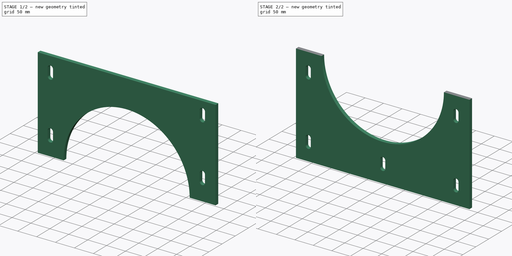
[diagram: build sequence overview — one tinted view per stage of 2, left to right]
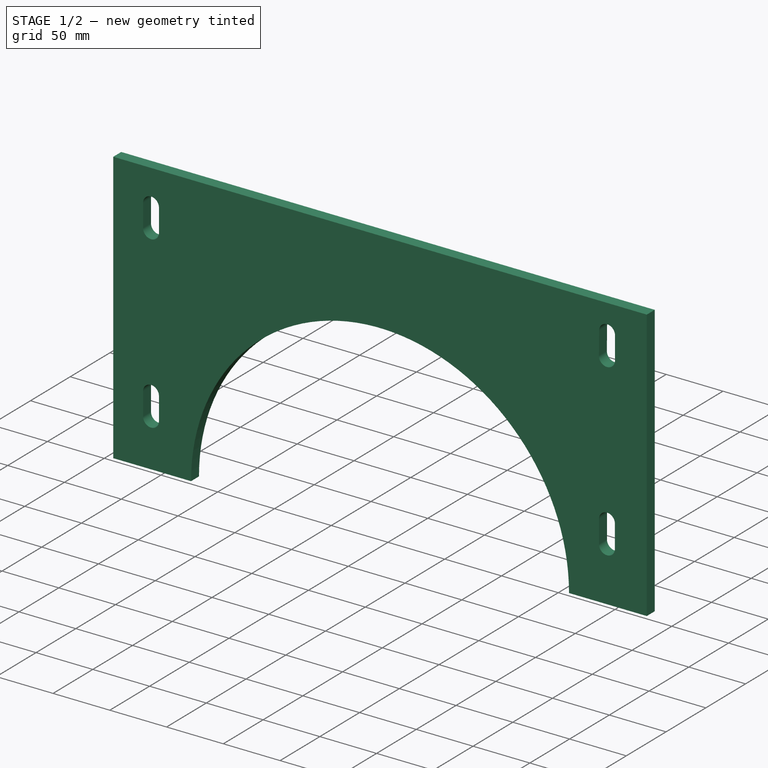
[diagram: stage 1 of 2 — iso view after this stage's code; geometry added in this stage tinted green]
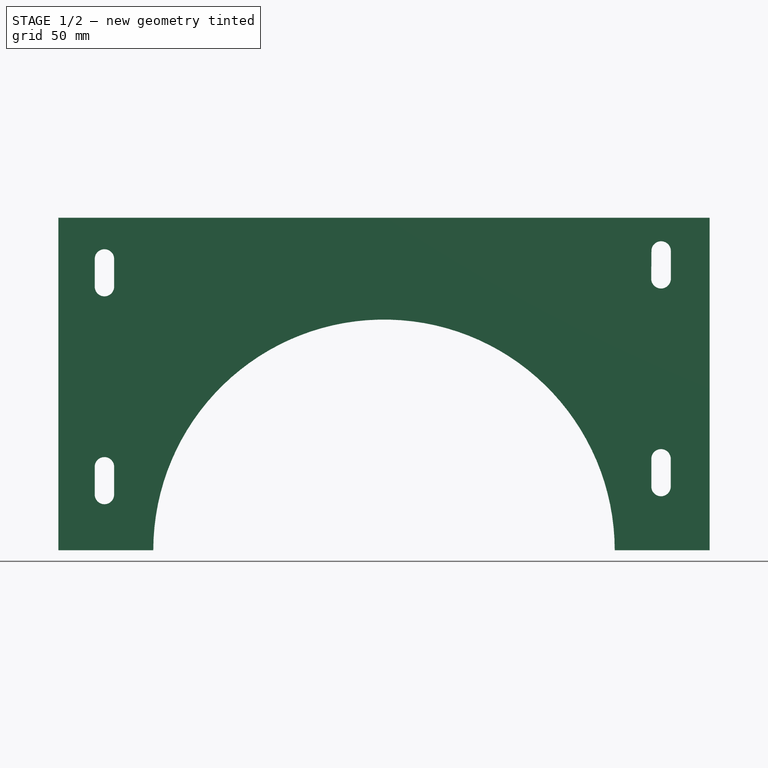
[diagram: stage 1 of 2 — front view after this stage's code; geometry added in this stage tinted green]
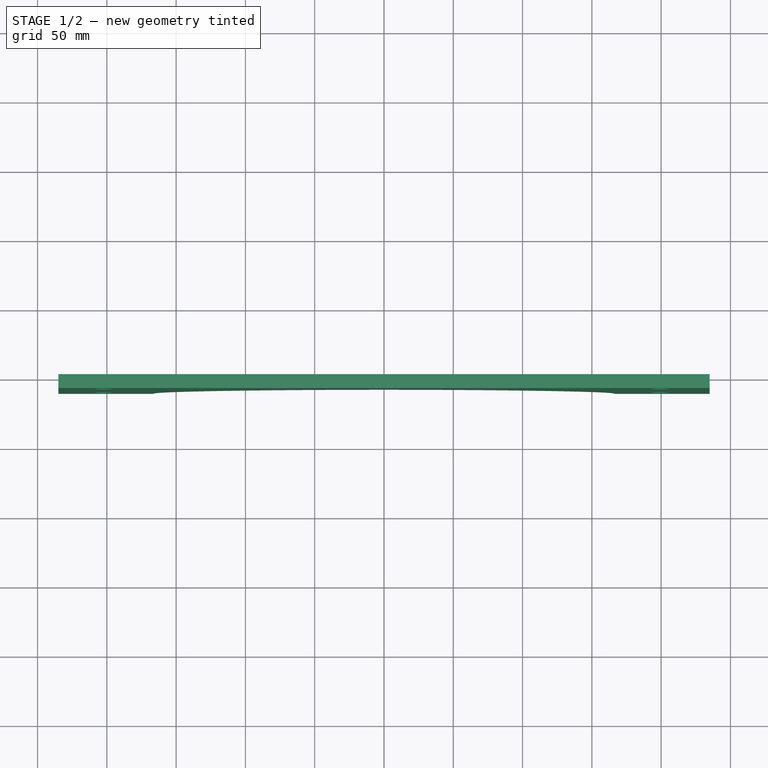
[diagram: stage 1 of 2 — top view after this stage's code; geometry added in this stage tinted green]
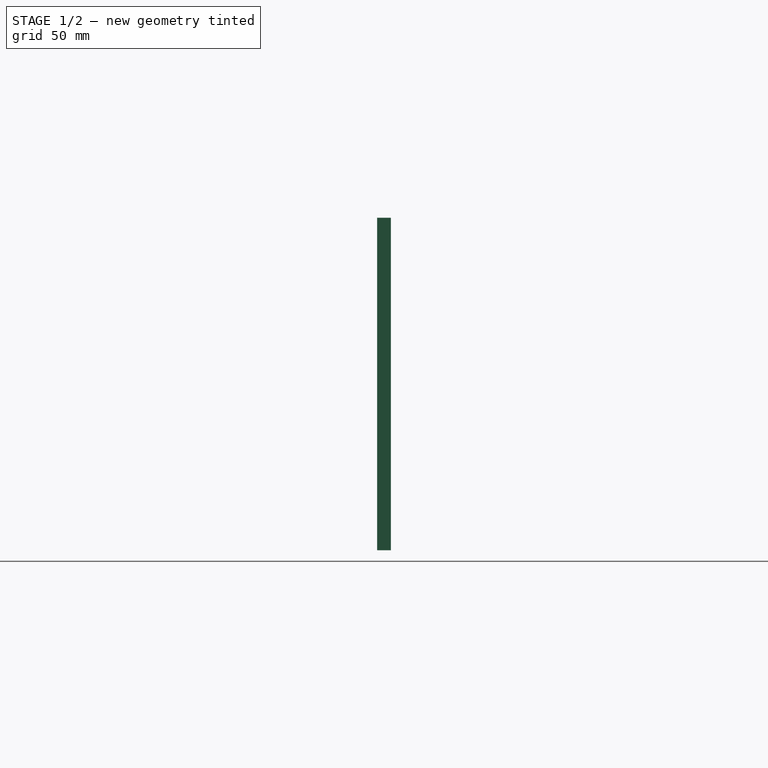
[diagram: stage 1 of 2 — right view after this stage's code; geometry added in this stage tinted green]
FCSTD DOCUMENT  (FreeCAD 0.21R33771 (Git))
Label: pipeBrg
License: All rights reserved
objects: Sketcher::SketchObject×2, Part::Extrusion×2, App::Part×1
note: 4 computed .brp shape members not serialized (recipe doc carries the construction recipe); baked Part::Feature solids carry a one-line shape summary decoded from their .brp

FEATURE [Sketcher::SketchObject] Sketch
  FullyConstrained = false
  Placement = pos=(0,0,0) rot=(1,0,0;1.5708rad)
  sketch-geometry (23):
    g0: LineSegment StartX=-235 StartY=2.04e-14 StartZ=0 EndX=-166.5 EndY=2.04e-14 EndZ=0
    g1: LineSegment StartX=235 StartY=0 StartZ=0 EndX=235 EndY=240 EndZ=0
    g2: LineSegment StartX=235 StartY=240 StartZ=0 EndX=-235 EndY=240 EndZ=0
    g3: LineSegment StartX=-235 StartY=240 StartZ=0 EndX=-235 EndY=2.84e-14 EndZ=0
    g4: ArcOfCircle CenterX=0 CenterY=0 CenterZ=0 NormalX=0 NormalY=0 NormalZ=1 AngleXU=0 Radius=166.5 StartAngle=0 EndAngle=3.14159
    g5: ArcOfCircle CenterX=200 CenterY=216 CenterZ=0 NormalX=0 NormalY=0 NormalZ=1 AngleXU=0 Radius=7.00012 StartAngle=0.000374706 EndAngle=3.13323
    g6: ArcOfCircle CenterX=199.917 CenterY=196.001 CenterZ=0 NormalX=0 NormalY=0 NormalZ=1 AngleXU=0 Radius=7.09043 StartAngle=3.13344 EndAngle=6.28314
    g7: LineSegment StartX=193 StartY=216.059 StartZ=0 EndX=192.827 EndY=196.059 EndZ=0
    g8: LineSegment StartX=207.008 StartY=196 StartZ=0 EndX=207 EndY=216.003 EndZ=0
    g9: ArcOfCircle CenterX=199.917 CenterY=66 CenterZ=0 NormalX=0 NormalY=0 NormalZ=1 AngleXU=0 Radius=7.00012 StartAngle=1e-16 EndAngle=3.14159
    g10: ArcOfCircle CenterX=199.917 CenterY=45.9993 CenterZ=0 NormalX=0 NormalY=0 NormalZ=1 AngleXU=0 Radius=7.00012 StartAngle=3.14159 EndAngle=6.28319
    g11: LineSegment StartX=192.917 StartY=66 StartZ=0 EndX=192.917 EndY=45.9993 EndZ=0
    g12: LineSegment StartX=206.917 StartY=45.9993 StartZ=0 EndX=206.917 EndY=66 EndZ=0
    g13: ArcOfCircle CenterX=-201.748 CenterY=210.254 CenterZ=0 NormalX=0 NormalY=0 NormalZ=1 AngleXU=0 Radius=7.00012 StartAngle=3e-16 EndAngle=3.14159
    g14: ArcOfCircle CenterX=-201.748 CenterY=190.253 CenterZ=0 NormalX=0 NormalY=0 NormalZ=1 AngleXU=0 Radius=7.00012 StartAngle=3.14159 EndAngle=6.28319
    g15: LineSegment StartX=-208.749 StartY=210.254 StartZ=0 EndX=-208.749 EndY=190.253 EndZ=0
    g16: LineSegment StartX=-194.748 StartY=190.253 StartZ=0 EndX=-194.748 EndY=210.254 EndZ=0
    g17: ArcOfCircle CenterX=-201.748 CenterY=60.254 CenterZ=0 NormalX=0 NormalY=0 NormalZ=1 AngleXU=0 Radius=7.00012 StartAngle=1.24e-14 EndAngle=3.14159
    g18: ArcOfCircle CenterX=-201.748 CenterY=40.2532 CenterZ=0 NormalX=0 NormalY=0 NormalZ=1 AngleXU=0 Radius=7.00012 StartAngle=3.14159 EndAngle=6.28319
    g19: LineSegment StartX=-208.749 StartY=60.254 StartZ=0 EndX=-208.749 EndY=40.2532 EndZ=0
    g20: LineSegment StartX=-194.748 StartY=40.2532 StartZ=0 EndX=-194.748 EndY=60.254 EndZ=0
    g21: LineSegment StartX=207.004 StartY=210.597 StartZ=0 EndX=-194.748 EndY=210.254 EndZ=0
    g22: LineSegment StartX=166.5 StartY=0 StartZ=0 EndX=235 EndY=0 EndZ=0
  constraints (55):
    c: Coincident(g22,g1)
    c: Coincident(g1,g2)
    c: Coincident(g2,g3)
    c: Coincident(g3,g0)
    c: Horizontal(g0)
    c: Vertical(g1)
    c: Vertical(g3)
    c: PointOnObject(g0,g-1)
    c: Coincident(g4,g-1)
    c: Radius(g4) = 166.5
    c: DistanceX(g2,g2) = 470
    c: Symmetric(g1,g2,g-2)
    c: DistanceY(g1,g1) = 240
    c: DistanceX(g5,g5) = 14
    c: DistanceY(g7,g7) = 20
    c: DistanceY(g5,g1) = 24
    c: DistanceX(g4,g5) = 200
    c: Tangent(g9,g11) = -1.5708
    c: Tangent(g11,g10) = -1.5708
    c: Tangent(g10,g12) = -1.5708
    c: Tangent(g12,g9) = -1.5708
    c: Equal(g9,g10)
    c: Vertical(g11)
    c: Equal(g5,g9) = 14
    c: Equal(g7,g11) = 20
    c: Vertical(g9,g6)
    c: DistanceY(g9,g5) = 150
    c: Equal(g5,g13) = 14
    c: Equal(g7,g15) = 20
    c: Tangent(g17,g19) = -1.5708
    c: Tangent(g19,g18) = -1.5708
    c: Tangent(g18,g20) = -1.5708
    c: Tangent(g20,g17) = -1.5708
    c: Equal(g17,g18)
    c: Vertical(g19)
    c: Equal(g13,g17) = 14
    c: Equal(g15,g19) = 20
    c: Vertical(g17,g14)
    c: DistanceY(g17,g13) = 150
    c: Angle(g21) = -3.14074
    c: Coincident(g0,g4)
    c: Coincident(g22,g4)
    c: Horizontal(g22)
    c: PointOnObject(g1,g-1)
    c: Vertical(g16)
    c: Vertical(g15)
    c: Coincident(g13,g21)
    c: Coincident(g5,g7)
    c: Tangent(g5,g8) = -1.5708
    c: Coincident(g8,g6)
    c: Coincident(g7,g6)
    c: Tangent(g16,g13) = -1.5708
    c: Tangent(g15,g14) = -1.5708
    c: Tangent(g16,g14) = -1.5708
    c: Tangent(g15,g13) = -1.5708
FEATURE [Part::Extrusion] Extrude
  Base = -> Sketch
  Dir = (0,-1,-3e-16)
  DirMode = 2
  FaceMakerClass = Part::FaceMakerBullseye
  LengthFwd = 10
  LengthRev = 0
  Solid = true
  Symmetric = false
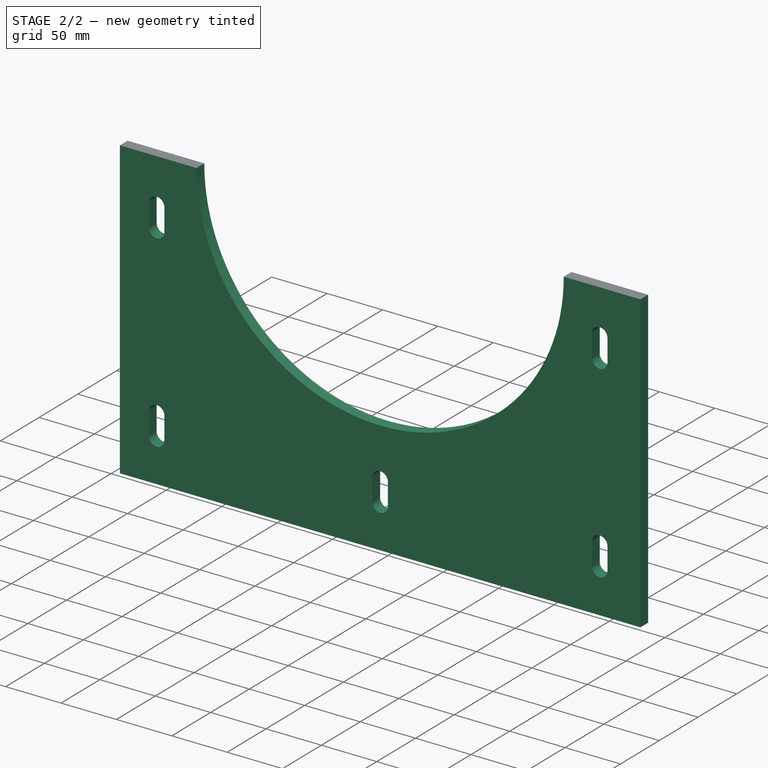
[diagram: stage 2 of 2 — iso view after this stage's code; geometry added in this stage tinted green]
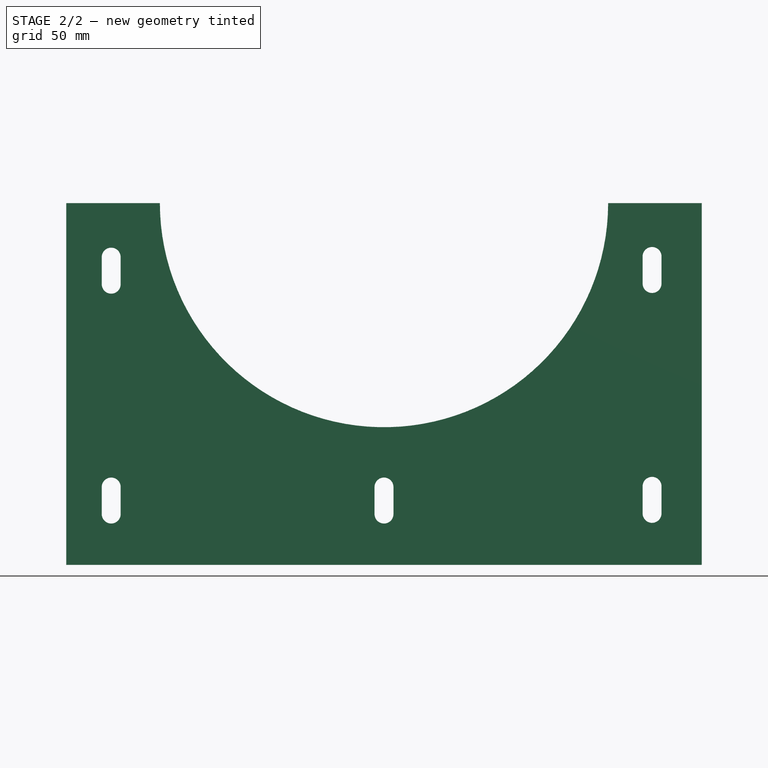
[diagram: stage 2 of 2 — front view after this stage's code; geometry added in this stage tinted green]
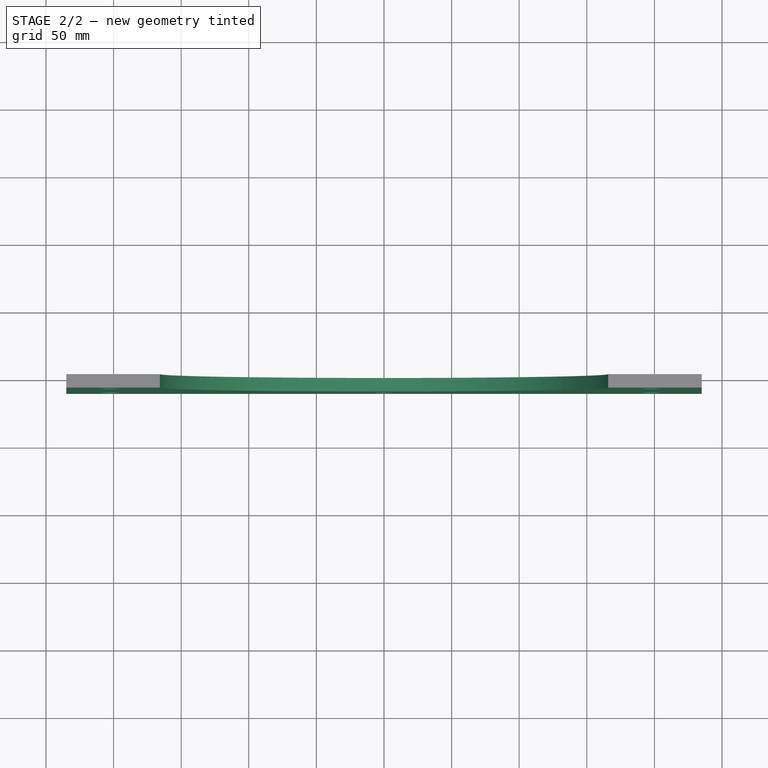
[diagram: stage 2 of 2 — top view after this stage's code; geometry added in this stage tinted green]
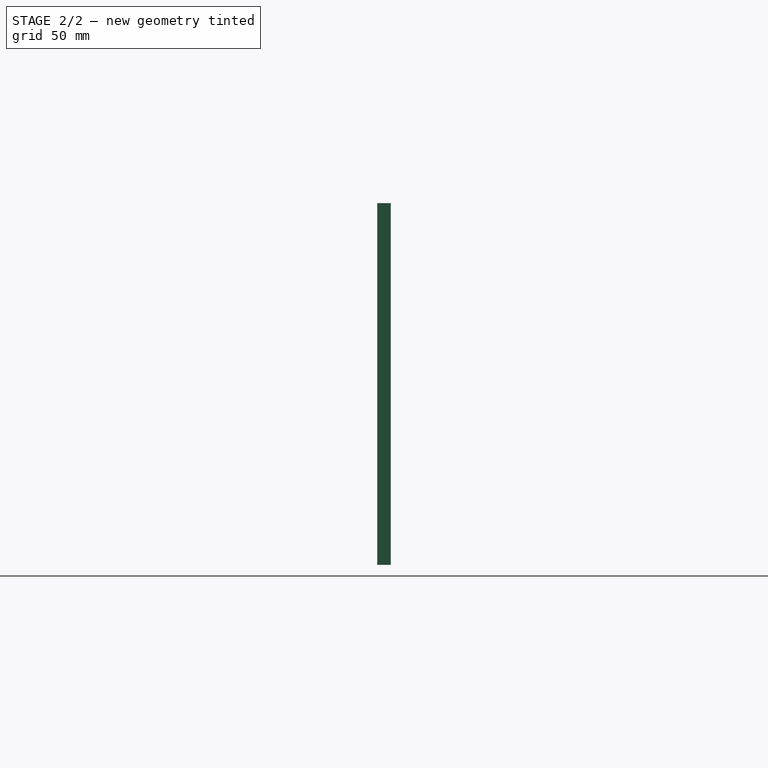
[diagram: stage 2 of 2 — right view after this stage's code; geometry added in this stage tinted green]
FEATURE [Sketcher::SketchObject] Sketch001
  ExternalGeometry = -> [Extrude]
  FullyConstrained = false
  Placement = pos=(0,0,0) rot=(1,0,0;1.5708rad)
  sketch-geometry (27):
    g0: LineSegment StartX=-235 StartY=0 StartZ=0 EndX=-165.769 EndY=6.65298e-10 EndZ=0
    g1: LineSegment StartX=235 StartY=-3.4e-15 StartZ=0 EndX=235 EndY=-267.623 EndZ=0
    g2: LineSegment StartX=235 StartY=-267.623 StartZ=0 EndX=-235 EndY=-267.623 EndZ=0
    g3: LineSegment StartX=-235 StartY=-267.623 StartZ=0 EndX=-235 EndY=0 EndZ=0
    g4: ArcOfCircle CenterX=0 CenterY=-4.06e-14 CenterZ=0 NormalX=0 NormalY=0 NormalZ=1 AngleXU=0 Radius=165.769 StartAngle=3.14159 EndAngle=6.28319
    g5: ArcOfCircle CenterX=-201.748 CenterY=-40 CenterZ=0 NormalX=0 NormalY=0 NormalZ=1 AngleXU=0 Radius=7 StartAngle=0 EndAngle=3.14159
    g6: ArcOfCircle CenterX=-201.748 CenterY=-60 CenterZ=0 NormalX=0 NormalY=0 NormalZ=1 AngleXU=0 Radius=7 StartAngle=3.14159 EndAngle=6.28319
    g7: LineSegment StartX=-208.748 StartY=-40 StartZ=0 EndX=-208.748 EndY=-60 EndZ=0
    g8: LineSegment StartX=-194.748 StartY=-60 StartZ=0 EndX=-194.748 EndY=-40 EndZ=0
    g9: ArcOfCircle CenterX=-201.748 CenterY=-210 CenterZ=0 NormalX=0 NormalY=0 NormalZ=1 AngleXU=0 Radius=7 StartAngle=4e-16 EndAngle=3.14159
    g10: ArcOfCircle CenterX=-201.748 CenterY=-230 CenterZ=0 NormalX=0 NormalY=0 NormalZ=1 AngleXU=0 Radius=7 StartAngle=3.14159 EndAngle=6.28319
    g11: LineSegment StartX=-208.748 StartY=-210 StartZ=0 EndX=-208.748 EndY=-230 EndZ=0
    g12: LineSegment StartX=-194.748 StartY=-230 StartZ=0 EndX=-194.748 EndY=-210 EndZ=0
    g13: ArcOfCircle CenterX=198.251 CenterY=-39.493 CenterZ=0 NormalX=0 NormalY=0 NormalZ=1 AngleXU=0 Radius=7 StartAngle=0 EndAngle=3.14159
    g14: ArcOfCircle CenterX=198.251 CenterY=-59.493 CenterZ=0 NormalX=0 NormalY=0 NormalZ=1 AngleXU=0 Radius=7 StartAngle=3.14159 EndAngle=6.28319
    g15: LineSegment StartX=191.251 StartY=-39.493 StartZ=0 EndX=191.251 EndY=-59.493 EndZ=0
    g16: LineSegment StartX=205.251 StartY=-59.493 StartZ=0 EndX=205.251 EndY=-39.493 EndZ=0
    g17: ArcOfCircle CenterX=198.251 CenterY=-209.493 CenterZ=0 NormalX=0 NormalY=0 NormalZ=1 AngleXU=0 Radius=7 StartAngle=1.5e-15 EndAngle=3.14159
    g18: ArcOfCircle CenterX=198.251 CenterY=-229.493 CenterZ=0 NormalX=0 NormalY=0 NormalZ=1 AngleXU=0 Radius=7 StartAngle=3.14159 EndAngle=6.28319
    g19: LineSegment StartX=191.251 StartY=-209.493 StartZ=0 EndX=191.251 EndY=-229.493 EndZ=0
    g20: LineSegment StartX=205.251 StartY=-229.493 StartZ=0 EndX=205.251 EndY=-209.493 EndZ=0
    g21: LineSegment StartX=-194.748 StartY=-40 StartZ=0 EndX=205.251 EndY=-39.493 EndZ=0
    g22: LineSegment StartX=165.769 StartY=6.65296e-10 StartZ=0 EndX=235 EndY=-3.4e-15 EndZ=0
    g23: ArcOfCircle CenterX=0 CenterY=-210 CenterZ=0 NormalX=0 NormalY=0 NormalZ=1 AngleXU=0 Radius=7 StartAngle=-9e-16 EndAngle=3.14159
    g24: ArcOfCircle CenterX=-2e-16 CenterY=-230 CenterZ=0 NormalX=0 NormalY=0 NormalZ=1 AngleXU=0 Radius=7 StartAngle=3.14159 EndAngle=6.28319
    g25: LineSegment StartX=-7 StartY=-210 StartZ=0 EndX=-7 EndY=-230 EndZ=0
    g26: LineSegment StartX=7 StartY=-230 StartZ=0 EndX=7 EndY=-210 EndZ=0
  constraints (66):
    c: Coincident(g22,g1)
    c: Coincident(g1,g2)
    c: Coincident(g2,g3)
    c: Coincident(g3,g0)
    c: Horizontal(g2)
    c: Vertical(g1)
    c: Vertical(g3)
    c: Coincident(g22,g-3)
    c: Coincident(g0,g-4)
    c: Coincident(g4,g-1)
    c: Horizontal(g4,g4)
    c: Horizontal(g4,g4)
    c: Tangent(g5,g7) = -1.5708
    c: Tangent(g7,g6) = -1.5708
    c: Tangent(g6,g8) = -1.5708
    c: Tangent(g8,g5) = -1.5708
    c: Equal(g5,g6)
    c: Vertical(g7)
    c: DistanceY(g8,g8) = 20
    c: DistanceX(g5,g5) = 14
    c: Vertical(g5,g-5)
    c: DistanceY(g5,g4) = 40
    c: Tangent(g9,g11) = -1.5708
    c: Tangent(g11,g10) = -1.5708
    c: Tangent(g10,g12) = -1.5708
    c: Tangent(g12,g9) = -1.5708
    c: Equal(g9,g10)
    c: Vertical(g11)
    c: Equal(g8,g12) = 20
    c: Equal(g5,g9) = 14
    c: Vertical(g6,g9)
    c: Tangent(g13,g15) = -1.5708
    c: Tangent(g15,g14) = -1.5708
    c: Tangent(g14,g16) = -1.5708
    c: Tangent(g16,g13) = -1.5708
    c: Equal(g13,g14)
    c: Vertical(g15)
    c: Equal(g8,g16) = 20
    c: Equal(g5,g13) = 14
    c: Tangent(g17,g19) = -1.5708
    c: Tangent(g19,g18) = -1.5708
    c: Tangent(g18,g20) = -1.5708
    c: Tangent(g20,g17) = -1.5708
    c: Equal(g17,g18)
    c: Vertical(g19)
    c: Equal(g16,g20) = 20
    c: Equal(g13,g17) = 14
    c: Vertical(g14,g17)
    c: Coincident(g5,g21)
    c: Coincident(g13,g21)
    c: Distance(g21) = 400
    c: Angle(g21) = 0.00126745
    c: PointOnObject(g0,g4)
    c: PointOnObject(g22,g4)
    c: Tangent(g23,g25) = -1.5708
    c: Tangent(g25,g24) = -1.5708
    c: Tangent(g24,g26) = -1.5708
    c: Tangent(g26,g23) = -1.5708
    c: Equal(g23,g24)
    c: Vertical(g25)
    c: DistanceX(g23,g23) = 14
    c: DistanceY(g25,g25) = 20
    c: PointOnObject(g23,g-2)
    c: Horizontal(g9,g23)
    c: DistanceY(g9,g5) = 170
    c: DistanceY(g17,g13) = 170
FEATURE [Part::Extrusion] Extrude001
  Base = -> Sketch001
  Dir = (0,-1,-3e-16)
  DirMode = 2
  FaceMakerClass = Part::FaceMakerBullseye
  LengthFwd = 10
  LengthRev = 0
  Solid = true
  Symmetric = false
FEATURE [App::Part] Part  label="pipeBrg"
  Group = -> [Sketch,Sketch001,Extrude,Extrude001]
  Origin = -> Origin
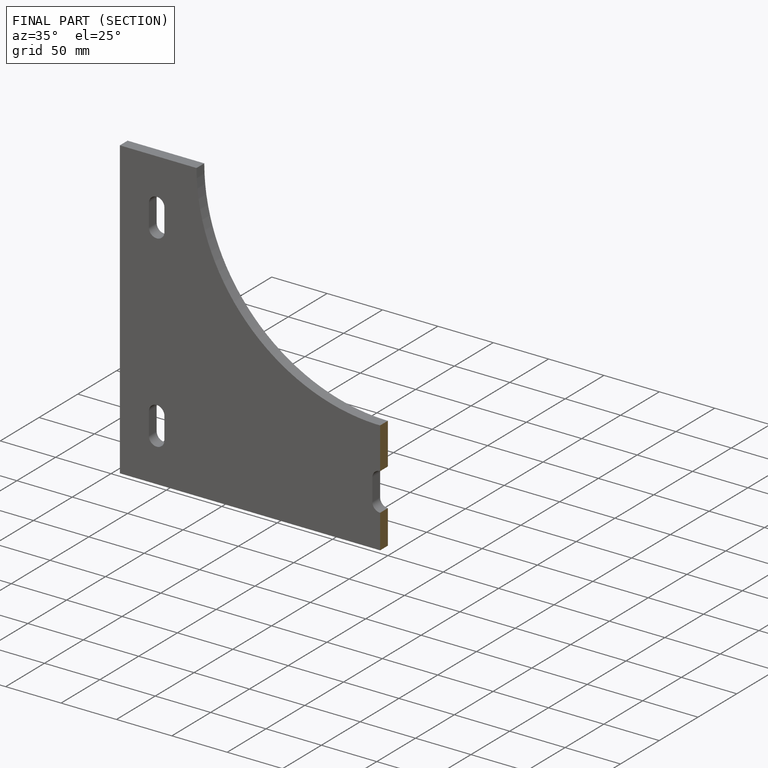
[diagram: finished part — half-section view (interior)]
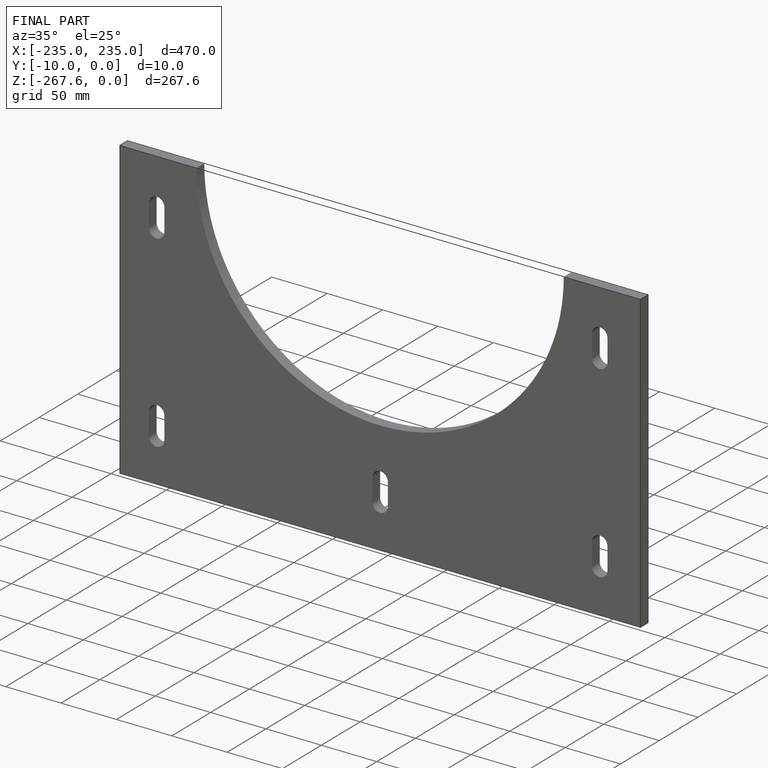
[diagram: finished part — iso view with bounding-box wireframe]
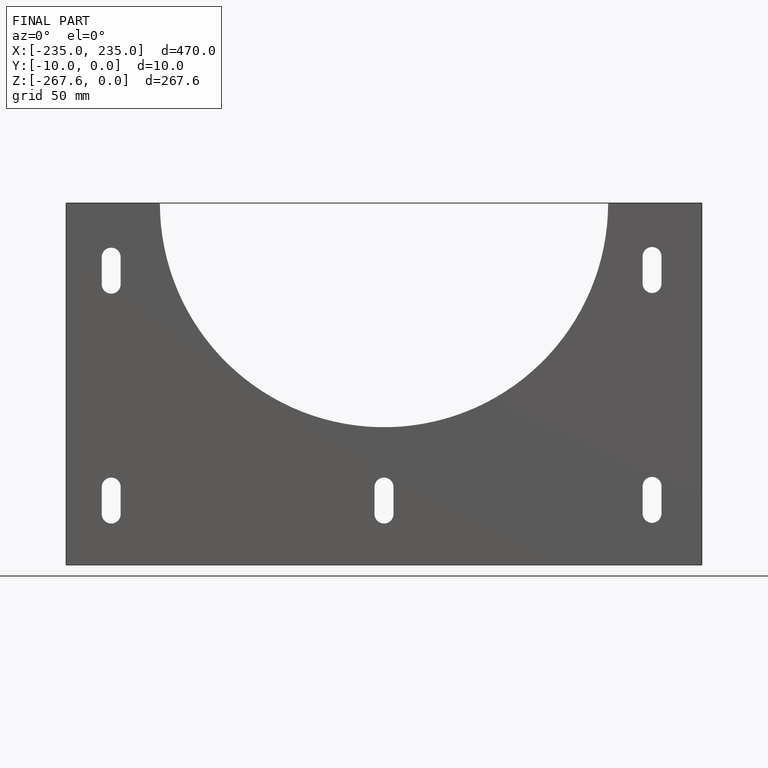
[diagram: finished part — front view with bounding-box wireframe]
